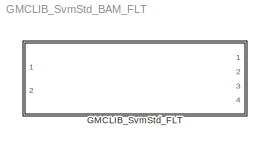
MODEL GMCLIB_SvmStd_BAM_FLT
KIND model
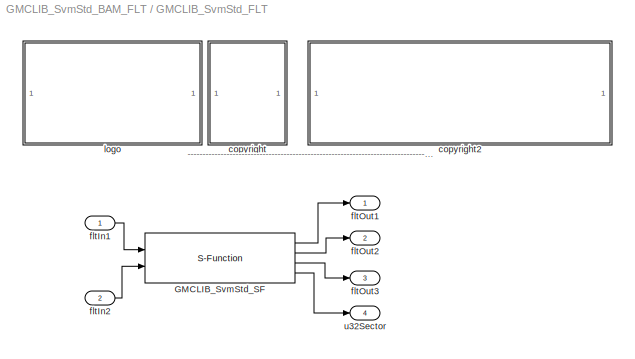
BLOCK [SubSystem] GMCLIB_SvmStd_FLT
  Ports = [2, 4]
  RequestExecContextInheritance = off
  SID = 1
BLOCK [S-Function] GMCLIB_SvmStd_FLT/GMCLIB_SvmStd_SF
  EnableBusSupport = off
  FunctionName = GMCLIB_SvmStd_SF_FLT
  Ports = [2, 4]
  SID = 4
BLOCK [SubSystem] GMCLIB_SvmStd_FLT/<copyright redacted>
  Ports = []
  RequestExecContextInheritance = off
  SID = 5
BLOCK [SubSystem] GMCLIB_SvmStd_FLT/copyright2
  Ports = []
  RequestExecContextInheritance = off
  SID = 6
BLOCK [Inport] GMCLIB_SvmStd_FLT/fltIn1
  IconDisplay = Port number
  SID = 2
BLOCK [Inport] GMCLIB_SvmStd_FLT/fltIn2
  IconDisplay = Port number
  Port = 2
  SID = 3
BLOCK [Outport] GMCLIB_SvmStd_FLT/fltOut1
  IconDisplay = Port number
  SID = 8
BLOCK [Outport] GMCLIB_SvmStd_FLT/fltOut2
  IconDisplay = Port number
  Port = 2
  SID = 9
BLOCK [Outport] GMCLIB_SvmStd_FLT/fltOut3
  IconDisplay = Port number
  Port = 3
  SID = 10
BLOCK [SubSystem] GMCLIB_SvmStd_FLT/logo
  Ports = []
  RequestExecContextInheritance = off
  SID = 7
BLOCK [Outport] GMCLIB_SvmStd_FLT/u32Sector
  IconDisplay = Port number
  Port = 4
  SID = 11
ANNOTATION GMCLIB_SvmStd_FLT: ---------------------------------------------------------------------------------------------------------------------------------------------------------------------------------------------------
LINE GMCLIB_SvmStd_FLT/GMCLIB_SvmStd_SF:1 -> GMCLIB_SvmStd_FLT/fltOut1:1
LINE GMCLIB_SvmStd_FLT/GMCLIB_SvmStd_SF:2 -> GMCLIB_SvmStd_FLT/fltOut2:1
LINE GMCLIB_SvmStd_FLT/GMCLIB_SvmStd_SF:3 -> GMCLIB_SvmStd_FLT/fltOut3:1
LINE GMCLIB_SvmStd_FLT/GMCLIB_SvmStd_SF:4 -> GMCLIB_SvmStd_FLT/u32Sector:1
LINE GMCLIB_SvmStd_FLT/fltIn1:1 -> GMCLIB_SvmStd_FLT/GMCLIB_SvmStd_SF:1
LINE GMCLIB_SvmStd_FLT/fltIn2:1 -> GMCLIB_SvmStd_FLT/GMCLIB_SvmStd_SF:2
